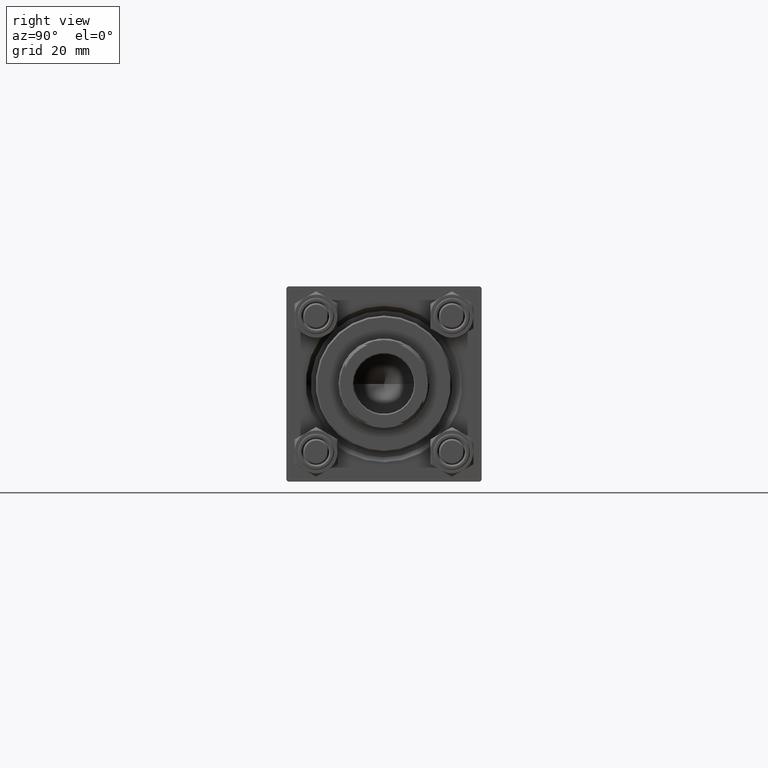
[diagram: clean part render]
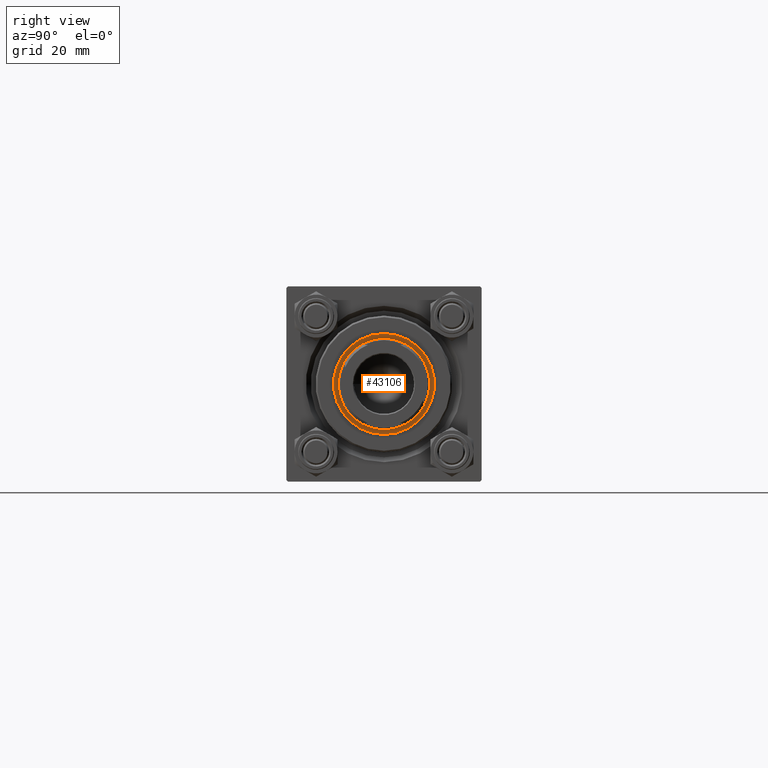
[diagram: same view with one face highlighted and labeled with its STEP entity id]
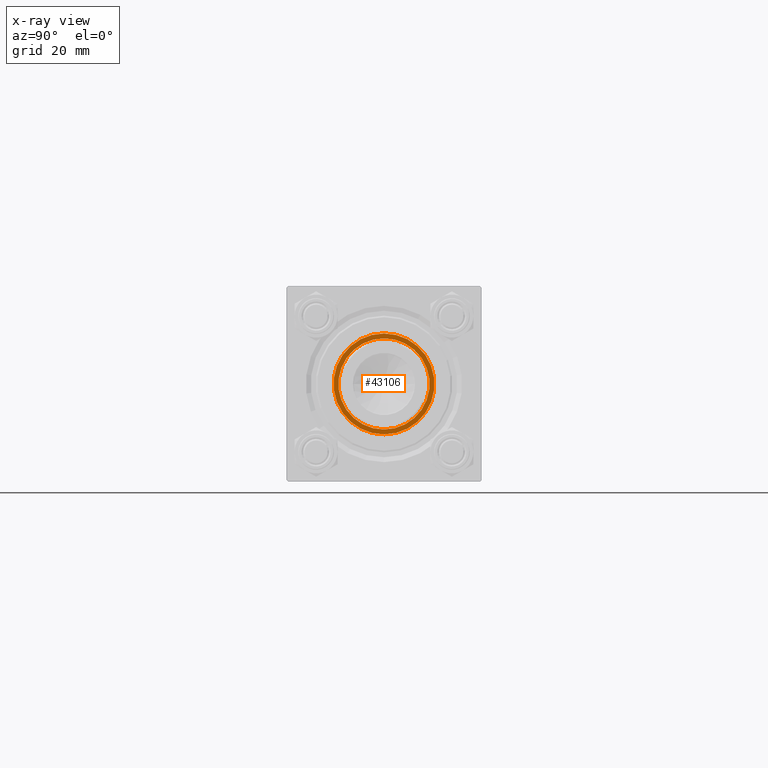
[diagram: x-ray of the same camera — body ghosted, the highlighted face saturated]
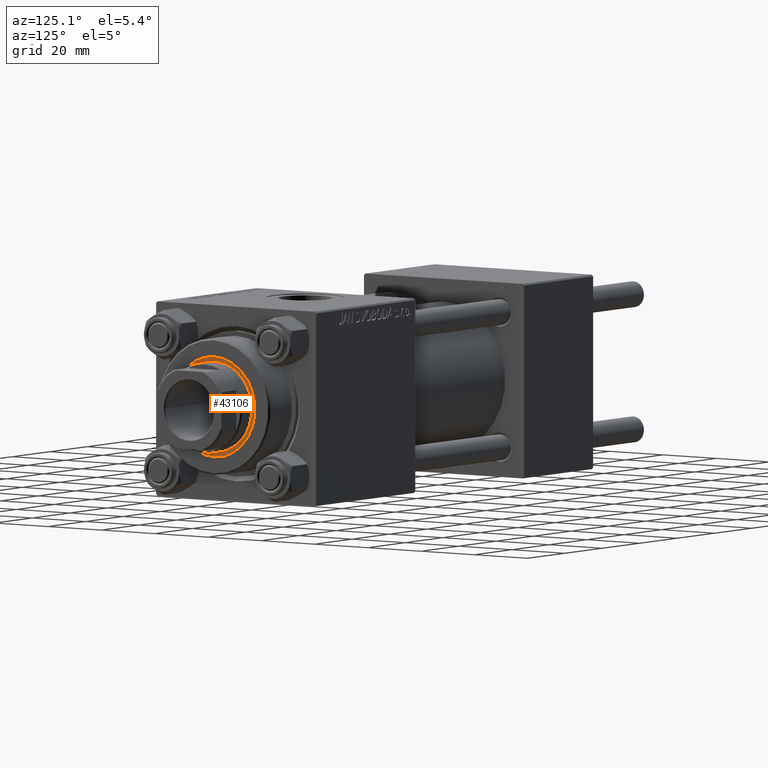
[diagram: same view with one face highlighted and labeled with its STEP entity id]
A machine part, right view. The second image highlights one B-rep face of the part: STEP entity #43106.
The next image is the same camera in x-ray: the body ghosted, the highlighted face saturated — about 0% of this face is hidden behind the body in this view.
A second angle (auxiliary view) of the same face is appended — the face is thin or edge-on in the first view.
In plain terms, the highlighted planar face has unit normal (1, 0, -0).
Its self-contained STEP definition (entity closure, byte-faithful):
#4004 = AXIS2_PLACEMENT_3D ( 'NONE', #14010, #10483, #25880 ) ;
#4724 = DIRECTION ( 'NONE',  ( -0.000000000000000000, -0.000000000000000000, -1.000000000000000000 ) ) ;
#4728 = AXIS2_PLACEMENT_3D ( 'NONE', #11081, #26486, #41873 ) ;
#9030 = ORIENTED_EDGE ( 'NONE', *, *, #34496, .T. ) ;
#9895 = CARTESIAN_POINT ( 'NONE',  ( -14.00000000000000178, 1.714505518806294835E-15, 40.20000000000000284 ) ) ;
#10483 = DIRECTION ( 'NONE',  ( 0.000000000000000000, 0.000000000000000000, 1.000000000000000000 ) ) ;
#11081 = CARTESIAN_POINT ( 'NONE',  ( 0.000000000000000000, 0.000000000000000000, 40.20000000000000284 ) ) ;
#12775 = VERTEX_POINT ( 'NONE', #40654 ) ;
#12810 = CARTESIAN_POINT ( 'NONE',  ( 0.000000000000000000, 0.000000000000000000, 40.20000000000000284 ) ) ;
#12984 = CIRCLE ( 'NONE', #35539, 15.50000000000000000 ) ;
#13782 = ORIENTED_EDGE ( 'NONE', *, *, #25561, .T. ) ;
#14010 = CARTESIAN_POINT ( 'NONE',  ( 0.000000000000000000, 0.000000000000000000, 40.20000000000000284 ) ) ;
#15500 = PLANE ( 'NONE',  #48098 ) ;
#17125 = VERTEX_POINT ( 'NONE', #9895 ) ;
#23931 = CARTESIAN_POINT ( 'NONE',  ( 0.000000000000000000, 0.000000000000000000, 40.20000000000000284 ) ) ;
#25561 = EDGE_CURVE ( 'NONE', #12775, #17125, #45678, .T. ) ;
#25880 = DIRECTION ( 'NONE',  ( 1.000000000000000000, 0.000000000000000000, 0.000000000000000000 ) ) ;
#26484 = VERTEX_POINT ( 'NONE', #27960 ) ;
#26486 = DIRECTION ( 'NONE',  ( -0.000000000000000000, -0.000000000000000000, -1.000000000000000000 ) ) ;
#26864 = FACE_BOUND ( 'NONE', #35861, .T. ) ;
#27960 = CARTESIAN_POINT ( 'NONE',  ( -15.50000000000000000, 1.898202538678397557E-15, 40.20000000000000284 ) ) ;
#29700 = CIRCLE ( 'NONE', #4728, 14.00000000000000178 ) ;
#29780 = EDGE_CURVE ( 'NONE', #17125, #12775, #29700, .T. ) ;
#31760 = DIRECTION ( 'NONE',  ( 0.000000000000000000, 0.000000000000000000, 1.000000000000000000 ) ) ;
#32020 = AXIS2_PLACEMENT_3D ( 'NONE', #12810, #4724, #43590 ) ;
#32503 = EDGE_CURVE ( 'NONE', #47631, #26484, #39500, .T. ) ;
#34496 = EDGE_CURVE ( 'NONE', #26484, #47631, #12984, .T. ) ;
#34692 = FACE_OUTER_BOUND ( 'NONE', #36603, .T. ) ;
#35539 = AXIS2_PLACEMENT_3D ( 'NONE', #23931, #31760, #42605 ) ;
#35594 = CARTESIAN_POINT ( 'NONE',  ( 15.50000000000000000, 0.000000000000000000, 40.20000000000000284 ) ) ;
#35861 = EDGE_LOOP ( 'NONE', ( #13782, #46167 ) ) ;
#36603 = EDGE_LOOP ( 'NONE', ( #42863, #9030 ) ) ;
#38215 = DIRECTION ( 'NONE',  ( 0.000000000000000000, 0.000000000000000000, 1.000000000000000000 ) ) ;
#39500 = CIRCLE ( 'NONE', #4004, 15.50000000000000000 ) ;
#40654 = CARTESIAN_POINT ( 'NONE',  ( 14.00000000000000178, 0.000000000000000000, 40.20000000000000284 ) ) ;
#41873 = DIRECTION ( 'NONE',  ( 1.000000000000000000, 0.000000000000000000, 0.000000000000000000 ) ) ;
#42258 = DIRECTION ( 'NONE',  ( 1.000000000000000000, 0.000000000000000000, -0.000000000000000000 ) ) ;
#42605 = DIRECTION ( 'NONE',  ( 1.000000000000000000, 0.000000000000000000, 0.000000000000000000 ) ) ;
#42863 = ORIENTED_EDGE ( 'NONE', *, *, #32503, .T. ) ;
#43106 = ADVANCED_FACE ( 'NONE', ( #34692, #26864 ), #15500, .T. ) ;
#43590 = DIRECTION ( 'NONE',  ( 1.000000000000000000, 0.000000000000000000, 0.000000000000000000 ) ) ;
#45678 = CIRCLE ( 'NONE', #32020, 14.00000000000000178 ) ;
#46035 = CARTESIAN_POINT ( 'NONE',  ( 0.000000000000000000, 0.000000000000000000, 40.20000000000000284 ) ) ;
#46167 = ORIENTED_EDGE ( 'NONE', *, *, #29780, .T. ) ;
#47631 = VERTEX_POINT ( 'NONE', #35594 ) ;
#48098 = AXIS2_PLACEMENT_3D ( 'NONE', #46035, #38215, #42258 ) ;